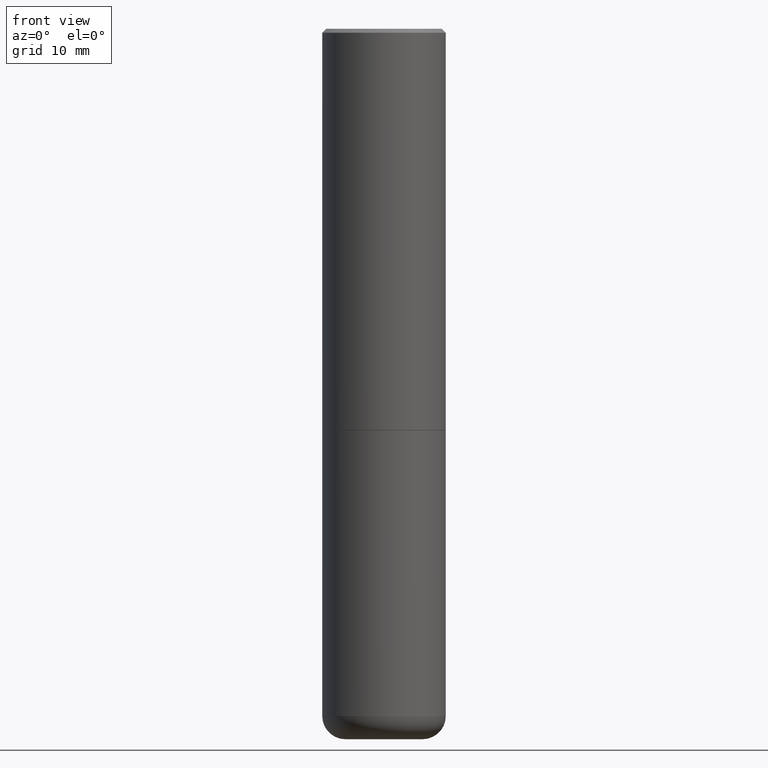
[diagram: clean part render]
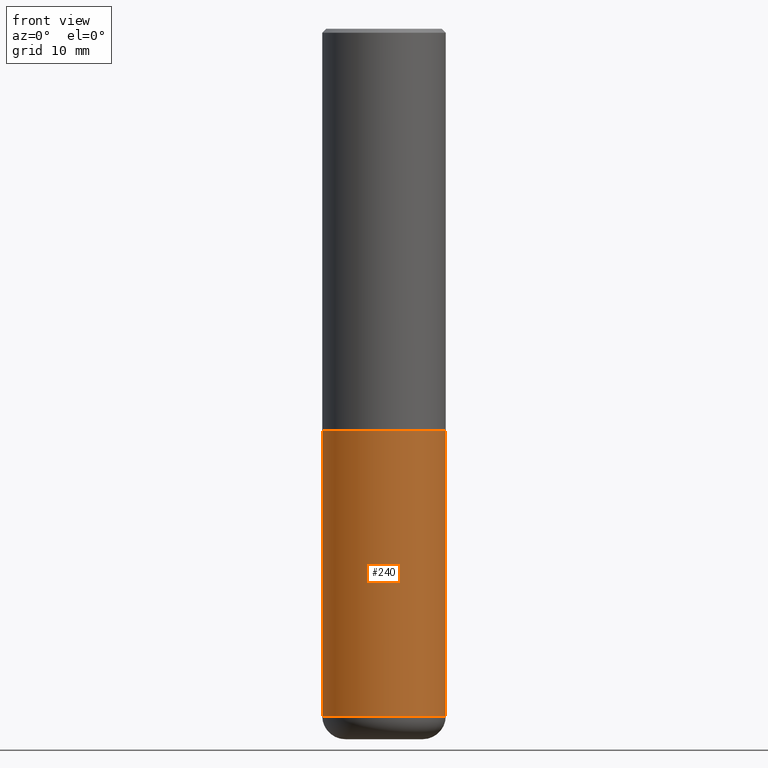
[diagram: same view with one face highlighted and labeled with its STEP entity id]
A machine part, front view. The second image highlights one B-rep face of the part: STEP entity #240.
In plain terms, the highlighted cylindrical surface (partial cylindrical patch) has radius 7.9997 mm, axis along (-0, 0, 1).
Its self-contained STEP definition (entity closure, byte-faithful):
#13 = EDGE_CURVE ( 'NONE', #392, #164, #109, .T. ) ;
#48 = AXIS2_PLACEMENT_3D ( 'NONE', #270, #407, #349 ) ;
#59 = AXIS2_PLACEMENT_3D ( 'NONE', #165, #370, #111 ) ;
#62 = ORIENTED_EDGE ( 'NONE', *, *, #121, .T. ) ;
#77 = LINE ( 'NONE', #234, #298 ) ;
#80 = VECTOR ( 'NONE', #231, 39.37007874015748143 ) ;
#83 = CARTESIAN_POINT ( 'NONE',  ( -0.3149500000000000077, -7.452926683749657046E-15, -2.047199999999999687 ) ) ;
#86 = DIRECTION ( 'NONE',  ( -2.445468806185136597E-29, 3.491481338843145583E-15, 1.000000000000000000 ) ) ;
#109 = LINE ( 'NONE', #116, #80 ) ;
#111 = DIRECTION ( 'NONE',  ( 1.000000000000000000, -6.982962677686269866E-15, 0.000000000000000000 ) ) ;
#116 = CARTESIAN_POINT ( 'NONE',  ( -0.3149500000000000077, 2.237854346276435590E-15, -1.549218606675782676E-29 ) ) ;
#121 = EDGE_CURVE ( 'NONE', #137, #355, #77, .T. ) ;
#127 = ORIENTED_EDGE ( 'NONE', *, *, #13, .F. ) ;
#137 = VERTEX_POINT ( 'NONE', #334 ) ;
#139 = CYLINDRICAL_SURFACE ( 'NONE', #48, 0.3149500000000000077 ) ;
#151 = EDGE_CURVE ( 'NONE', #164, #355, #369, .T. ) ;
#157 = EDGE_LOOP ( 'NONE', ( #127, #189, #62, #405 ) ) ;
#164 = VERTEX_POINT ( 'NONE', #83 ) ;
#165 = CARTESIAN_POINT ( 'NONE',  ( 5.006363740022211120E-29, -7.147760596879686624E-15, -2.047199999999999687 ) ) ;
#173 = FACE_OUTER_BOUND ( 'NONE', #157, .T. ) ;
#177 = CARTESIAN_POINT ( 'NONE',  ( 8.568678149992099474E-29, -1.223380146317249786E-14, -3.503899999999999793 ) ) ;
#189 = ORIENTED_EDGE ( 'NONE', *, *, #272, .T. ) ;
#211 = CARTESIAN_POINT ( 'NONE',  ( 0.3149500000000000077, -9.347044692216978073E-15, -2.047199999999999687 ) ) ;
#231 = DIRECTION ( 'NONE',  ( -2.445468806185136877E-29, 3.491481338843145188E-15, 1.000000000000000000 ) ) ;
#234 = CARTESIAN_POINT ( 'NONE',  ( 0.3149500000000000077, -2.199284095337289871E-15, 1.535751875536930130E-29 ) ) ;
#237 = AXIS2_PLACEMENT_3D ( 'NONE', #177, #86, #346 ) ;
#240 = ADVANCED_FACE ( 'NONE', ( #173 ), #139, .T. ) ;
#270 = CARTESIAN_POINT ( 'NONE',  ( 0.000000000000000000, 0.000000000000000000, 0.000000000000000000 ) ) ;
#272 = EDGE_CURVE ( 'NONE', #392, #137, #363, .T. ) ;
#298 = VECTOR ( 'NONE', #371, 39.37007874015748143 ) ;
#334 = CARTESIAN_POINT ( 'NONE',  ( 0.3149500000000000077, -1.443308555850978615E-14, -3.503899999999999793 ) ) ;
#346 = DIRECTION ( 'NONE',  ( 1.000000000000000000, -6.982962677686263555E-15, 0.000000000000000000 ) ) ;
#349 = DIRECTION ( 'NONE',  ( 1.000000000000000000, -6.982962677686266711E-15, 4.876176775795936353E-29 ) ) ;
#350 = CARTESIAN_POINT ( 'NONE',  ( -0.3149500000000000077, -9.995947116896063452E-15, -3.503899999999999793 ) ) ;
#355 = VERTEX_POINT ( 'NONE', #211 ) ;
#363 = CIRCLE ( 'NONE', #237, 0.3149500000000000077 ) ;
#369 = CIRCLE ( 'NONE', #59, 0.3149500000000000077 ) ;
#370 = DIRECTION ( 'NONE',  ( -2.445468806185136597E-29, 3.491481338843145583E-15, 1.000000000000000000 ) ) ;
#371 = DIRECTION ( 'NONE',  ( -2.445468806185136877E-29, 3.491481338843145188E-15, 1.000000000000000000 ) ) ;
#392 = VERTEX_POINT ( 'NONE', #350 ) ;
#405 = ORIENTED_EDGE ( 'NONE', *, *, #151, .F. ) ;
#407 = DIRECTION ( 'NONE',  ( -2.445468806185136597E-29, 3.491481338843145583E-15, 1.000000000000000000 ) ) ;